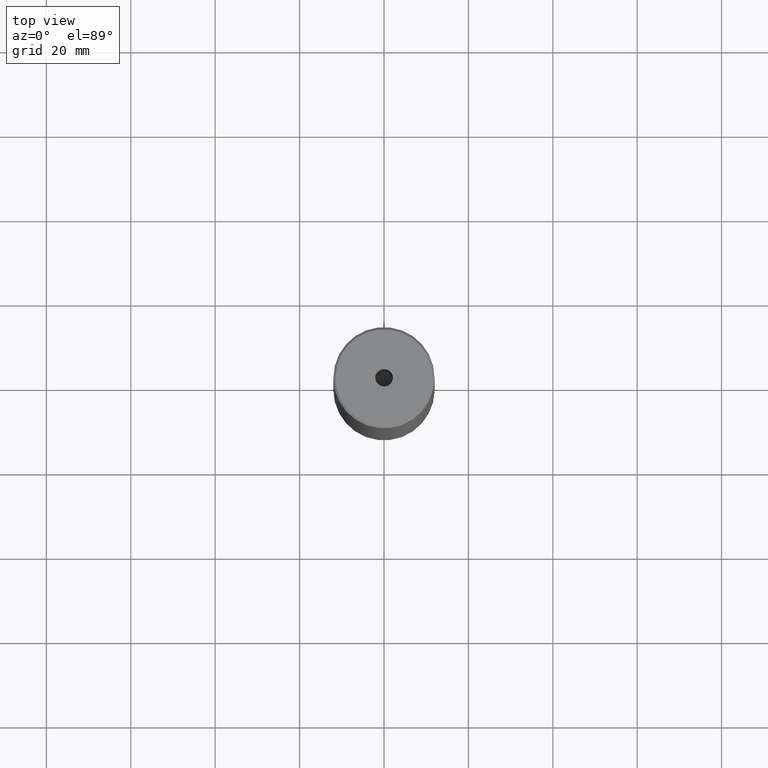
[diagram: clean part render]
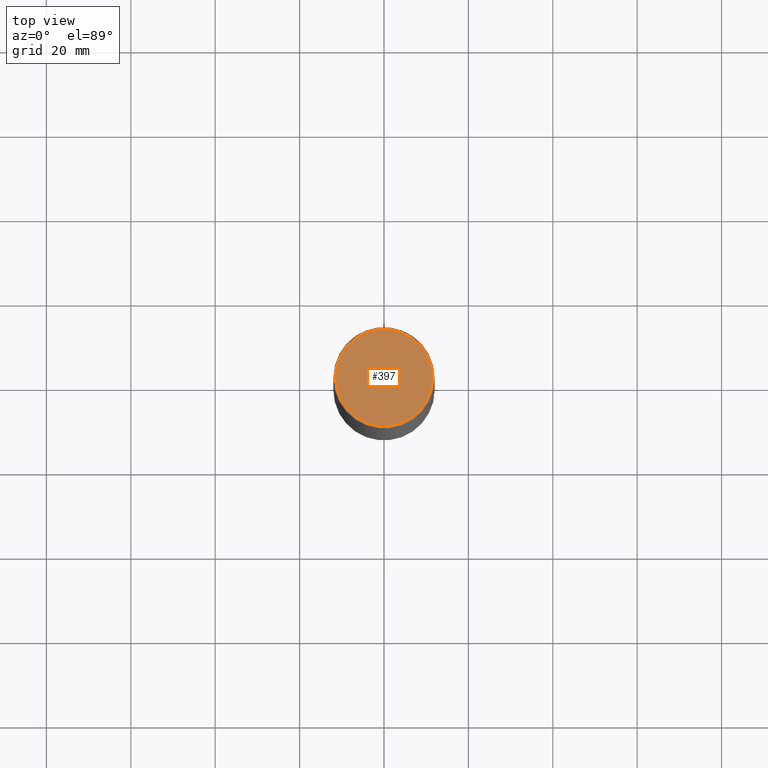
[diagram: same view with one face highlighted and labeled with its STEP entity id]
A machine part, top view. The second image highlights one B-rep face of the part: STEP entity #397.
In plain terms, the highlighted planar face has unit normal (0, -0, 1).
Its self-contained STEP definition (entity closure, byte-faithful):
#5 = FACE_BOUND ( 'NONE', #466, .T. ) ;
#23 = EDGE_LOOP ( 'NONE', ( #348, #227 ) ) ;
#28 = AXIS2_PLACEMENT_3D ( 'NONE', #487, #138, #492 ) ;
#51 = CARTESIAN_POINT ( 'NONE',  ( 2.099999999999998757, 0.000000000000000000, -1.990051048614449116E-16 ) ) ;
#57 = AXIS2_PLACEMENT_3D ( 'NONE', #95, #396, #278 ) ;
#81 = CARTESIAN_POINT ( 'NONE',  ( -11.49999999999999467, 0.000000000000000000, 0.000000000000000000 ) ) ;
#95 = CARTESIAN_POINT ( 'NONE',  ( 0.000000000000000000, 0.000000000000000000, 0.000000000000000000 ) ) ;
#97 = EDGE_CURVE ( 'NONE', #262, #354, #142, .T. ) ;
#110 = AXIS2_PLACEMENT_3D ( 'NONE', #585, #543, #500 ) ;
#112 = CIRCLE ( 'NONE', #336, 2.099999999999998757 ) ;
#138 = DIRECTION ( 'NONE',  ( -0.000000000000000000, -0.000000000000000000, 1.000000000000000000 ) ) ;
#142 = CIRCLE ( 'NONE', #205, 2.099999999999998757 ) ;
#174 = ORIENTED_EDGE ( 'NONE', *, *, #97, .F. ) ;
#191 = DIRECTION ( 'NONE',  ( -0.000000000000000000, -0.000000000000000000, 1.000000000000000000 ) ) ;
#195 = EDGE_CURVE ( 'NONE', #354, #262, #112, .T. ) ;
#205 = AXIS2_PLACEMENT_3D ( 'NONE', #409, #191, #371 ) ;
#208 = CIRCLE ( 'NONE', #28, 11.49999999999999467 ) ;
#217 = VERTEX_POINT ( 'NONE', #81 ) ;
#227 = ORIENTED_EDGE ( 'NONE', *, *, #337, .T. ) ;
#229 = CARTESIAN_POINT ( 'NONE',  ( 11.49999999999999467, 1.438959988998139766E-15, 0.000000000000000000 ) ) ;
#262 = VERTEX_POINT ( 'NONE', #476 ) ;
#278 = DIRECTION ( 'NONE',  ( 1.000000000000000000, 0.000000000000000000, 0.000000000000000000 ) ) ;
#281 = PLANE ( 'NONE',  #110 ) ;
#299 = CIRCLE ( 'NONE', #57, 11.49999999999999467 ) ;
#336 = AXIS2_PLACEMENT_3D ( 'NONE', #546, #526, #470 ) ;
#337 = EDGE_CURVE ( 'NONE', #390, #217, #299, .T. ) ;
#348 = ORIENTED_EDGE ( 'NONE', *, *, #405, .T. ) ;
#354 = VERTEX_POINT ( 'NONE', #51 ) ;
#371 = DIRECTION ( 'NONE',  ( 1.000000000000000000, 0.000000000000000000, 0.000000000000000000 ) ) ;
#390 = VERTEX_POINT ( 'NONE', #229 ) ;
#396 = DIRECTION ( 'NONE',  ( -0.000000000000000000, -0.000000000000000000, 1.000000000000000000 ) ) ;
#397 = ADVANCED_FACE ( 'NONE', ( #5, #444 ), #281, .T. ) ;
#405 = EDGE_CURVE ( 'NONE', #217, #390, #208, .T. ) ;
#409 = CARTESIAN_POINT ( 'NONE',  ( 0.000000000000000000, 0.000000000000000000, -1.990051048614449116E-16 ) ) ;
#444 = FACE_OUTER_BOUND ( 'NONE', #23, .T. ) ;
#458 = ORIENTED_EDGE ( 'NONE', *, *, #195, .F. ) ;
#466 = EDGE_LOOP ( 'NONE', ( #458, #174 ) ) ;
#470 = DIRECTION ( 'NONE',  ( 1.000000000000000000, 0.000000000000000000, 0.000000000000000000 ) ) ;
#476 = CARTESIAN_POINT ( 'NONE',  ( -2.099999999999998757, 2.571758278209440478E-16, -1.990051048614449116E-16 ) ) ;
#487 = CARTESIAN_POINT ( 'NONE',  ( 0.000000000000000000, 0.000000000000000000, 0.000000000000000000 ) ) ;
#492 = DIRECTION ( 'NONE',  ( 1.000000000000000000, 0.000000000000000000, 0.000000000000000000 ) ) ;
#500 = DIRECTION ( 'NONE',  ( 1.000000000000000000, 0.000000000000000000, 0.000000000000000000 ) ) ;
#526 = DIRECTION ( 'NONE',  ( -0.000000000000000000, -0.000000000000000000, 1.000000000000000000 ) ) ;
#543 = DIRECTION ( 'NONE',  ( 0.000000000000000000, -0.000000000000000000, 1.000000000000000000 ) ) ;
#546 = CARTESIAN_POINT ( 'NONE',  ( 0.000000000000000000, 0.000000000000000000, -1.990051048614449116E-16 ) ) ;
#585 = CARTESIAN_POINT ( 'NONE',  ( 0.000000000000000000, 0.000000000000000000, 0.000000000000000000 ) ) ;